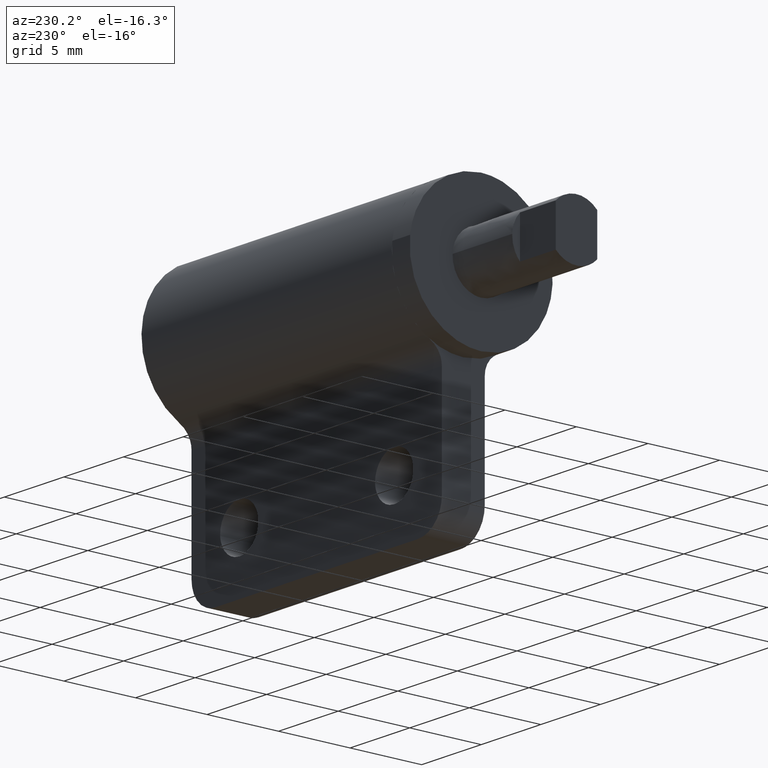
[diagram: clean part render]
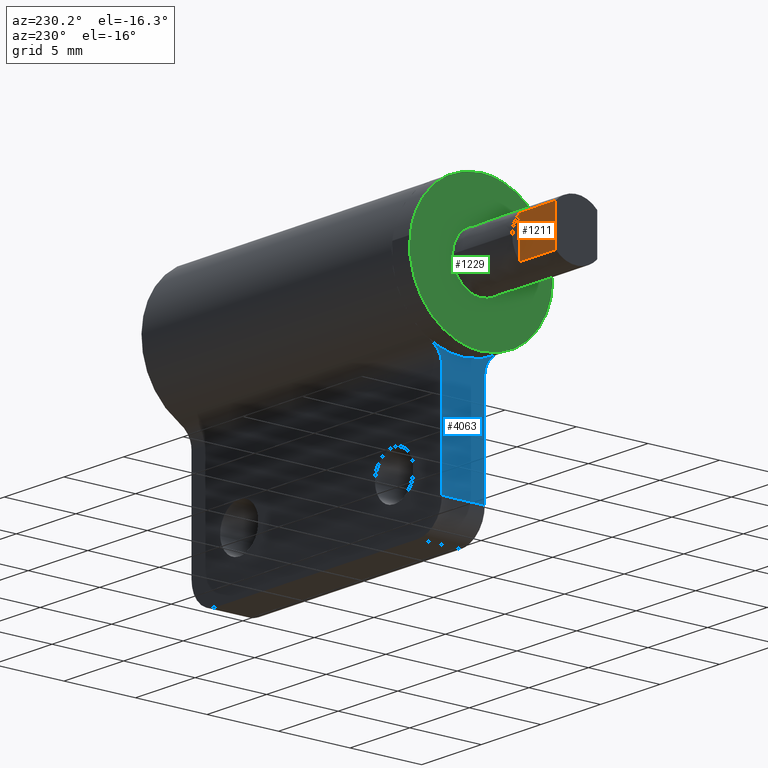
[diagram: same view with three faces highlighted in distinct colors, each labeled with its STEP entity id]
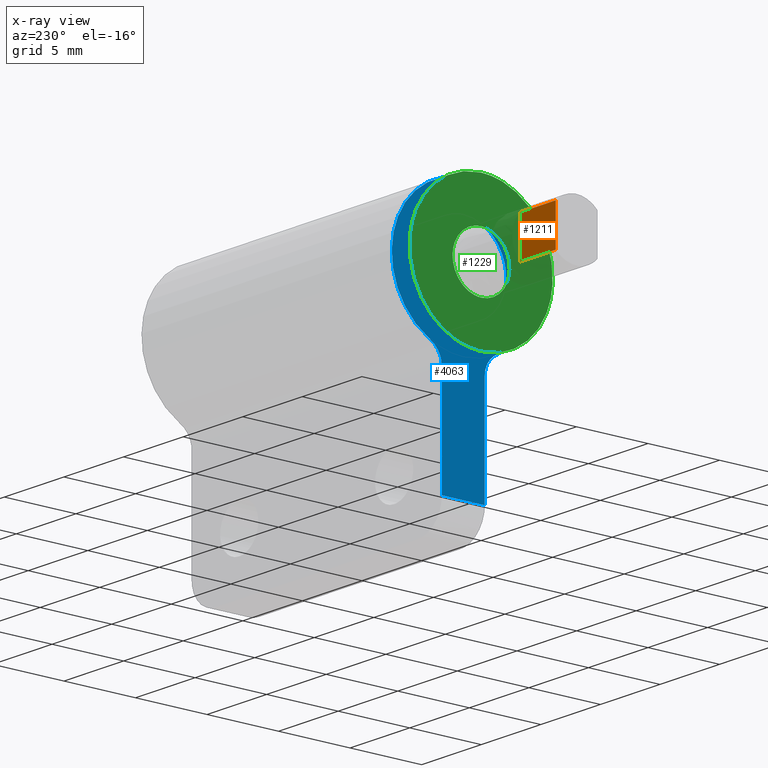
[diagram: x-ray of the same camera — body ghosted, the three highlighted faces saturated]
A machine part, auxiliary view with three faces highlighted in distinct colors.
The next image is the same camera in x-ray (body ghosted, the three faces saturated) — at least one of them is partly hidden behind the body in this view.
Their STEP definitions:

[orange] entity #1211 — the highlighted face is a freeform B-spline surface patch.
#949=CARTESIAN_POINT('',(0.0,1.450000000000000,1.377497731395444));
#950=VERTEX_POINT('',#949);
#964=CARTESIAN_POINT('',(-3.0,1.450000000000000,1.377498000000000));
#965=VERTEX_POINT('',#964);
#966=CARTESIAN_POINT('',(-3.0,1.450000000000000,1.377498000000000));
#967=CARTESIAN_POINT('',(0.0,1.450000000000000,1.377497731395444));
#968=QUASI_UNIFORM_CURVE('',1,(#966,#967),.UNSPECIFIED.,.F.,.U.);
#969=EDGE_CURVE('',#965,#950,#968,.T.);
#1074=CARTESIAN_POINT('',(-3.0,1.450000000000000,-1.377498000000000));
#1075=VERTEX_POINT('',#1074);
#1091=CARTESIAN_POINT('',(0.0,1.450000000000000,-1.377498000000000));
#1092=VERTEX_POINT('',#1091);
#1093=CARTESIAN_POINT('',(-3.0,1.450000000000000,-1.377498000000000));
#1094=CARTESIAN_POINT('',(0.0,1.450000000000000,-1.377498000000000));
#1095=QUASI_UNIFORM_CURVE('',1,(#1093,#1094),.UNSPECIFIED.,.F.,.U.);
#1096=EDGE_CURVE('',#1075,#1092,#1095,.T.);
#1166=CARTESIAN_POINT('',(-3.0,1.450000000000000,1.377498000000000));
#1167=CARTESIAN_POINT('',(-3.0,1.450000000000000,-1.377498000000000));
#1168=QUASI_UNIFORM_CURVE('',1,(#1166,#1167),.UNSPECIFIED.,.F.,.U.);
#1169=EDGE_CURVE('',#965,#1075,#1168,.T.);
#1196=CARTESIAN_POINT('',(-3.149849994185418,1.450000000000000,1.515110096584146));
#1197=CARTESIAN_POINT('',(-3.149849994185418,1.450000000000000,-1.515110121215729));
#1198=CARTESIAN_POINT('',(0.149850074651688,1.450000000000000,1.515110096584146));
#1199=CARTESIAN_POINT('',(0.149850074651688,1.450000000000000,-1.515110121215729));
#1200=B_SPLINE_SURFACE_WITH_KNOTS('',1,1,((#1196,#1198),(#1197,#1199)),.UNSPECIFIED.,.F.,.F.,.U.,(2,2),(2,2),(0.0,3.030220217799875),(0.0,3.299700068837106),.UNSPECIFIED.);
#1201=CARTESIAN_POINT('',(0.0,1.450000000000000,1.377497731395444));
#1202=CARTESIAN_POINT('',(0.0,1.450000000000000,-1.377498000000000));
#1203=QUASI_UNIFORM_CURVE('',1,(#1201,#1202),.UNSPECIFIED.,.F.,.U.);
#1204=EDGE_CURVE('',#950,#1092,#1203,.T.);
#1205=ORIENTED_EDGE('',*,*,#1204,.T.);
#1206=ORIENTED_EDGE('',*,*,#1096,.F.);
#1207=ORIENTED_EDGE('',*,*,#1169,.F.);
#1208=ORIENTED_EDGE('',*,*,#969,.T.);
#1209=EDGE_LOOP('',(#1205,#1206,#1207,#1208));
#1210=FACE_OUTER_BOUND('',#1209,.T.);
#1211=ADVANCED_FACE('',(#1210),#1200,.F.);

[blue] entity #4063 — the highlighted face is a freeform B-spline surface patch.
#3284=CARTESIAN_POINT('',(6.500000000000000,2.994404395264531,-0.183145618622066));
#3285=VERTEX_POINT('',#3284);
#3291=CARTESIAN_POINT('',(6.500000000000000,0.0,-3.0));
#3292=VERTEX_POINT('',#3291);
#3293=CARTESIAN_POINT('',(6.500000000000000,0.0,-3.0));
#3294=CARTESIAN_POINT('',(6.500000000000001,2.822118200684028,-3.0));
#3295=CARTESIAN_POINT('',(6.500000000000000,2.994404395264531,-0.183145618622066));
#3303=(BOUNDED_CURVE()B_SPLINE_CURVE(2,(#3293,#3294,#3295),.UNSPECIFIED.,.F.,.U.)B_SPLINE_CURVE_WITH_KNOTS((3,3),(0.500000000000000,0.739332962239951),.UNSPECIFIED.)CURVE()GEOMETRIC_REPRESENTATION_ITEM()RATIONAL_B_SPLINE_CURVE((1.0,0.719603993285529,0.976072041668878))REPRESENTATION_ITEM(''));
#3304=EDGE_CURVE('',#3292,#3285,#3303,.T.);
#3306=CARTESIAN_POINT('',(6.500000000000000,-2.979028579016237,0.354102704599239));
#3307=VERTEX_POINT('',#3306);
#3308=CARTESIAN_POINT('',(6.500000000000000,-2.979028579016238,0.354102704599239));
#3309=CARTESIAN_POINT('',(6.500000000000001,-3.0,0.177672359591343));
#3310=CARTESIAN_POINT('',(6.500000000000000,-3.0,0.0));
#3311=CARTESIAN_POINT('',(6.500000000000001,-3.0,-3.0));
#3312=CARTESIAN_POINT('',(6.500000000000000,0.0,-3.0));
#3320=(BOUNDED_CURVE()B_SPLINE_CURVE(2,(#3308,#3309,#3310,#3311,#3312),.UNSPECIFIED.,.F.,.U.)B_SPLINE_CURVE_WITH_KNOTS((3,2,3),(0.229562473444281,0.250000000000000,0.500000000000000),.UNSPECIFIED.)CURVE()GEOMETRIC_REPRESENTATION_ITEM()RATIONAL_B_SPLINE_CURVE((0.956026754048011,0.976055948250040,1.0,0.707106781186548,1.0))REPRESENTATION_ITEM(''));
#3321=EDGE_CURVE('',#3307,#3292,#3320,.T.);
#3365=CARTESIAN_POINT('',(6.500000000000000,0.0,3.0));
#3366=VERTEX_POINT('',#3365);
#3367=CARTESIAN_POINT('',(6.500000000000000,0.0,3.0));
#3368=CARTESIAN_POINT('',(6.500000000000000,-2.664523576721059,3.0));
#3369=CARTESIAN_POINT('',(6.500000000000000,-2.979028579016238,0.354102704599239));
#3377=(BOUNDED_CURVE()B_SPLINE_CURVE(2,(#3367,#3368,#3369),.UNSPECIFIED.,.F.,.U.)B_SPLINE_CURVE_WITH_KNOTS((3,3),(0.0,0.229562473444281),.UNSPECIFIED.)CURVE()GEOMETRIC_REPRESENTATION_ITEM()RATIONAL_B_SPLINE_CURVE((1.0,0.731050832936508,0.956026754048011))REPRESENTATION_ITEM(''));
#3378=EDGE_CURVE('',#3366,#3307,#3377,.T.);
#3380=CARTESIAN_POINT('',(6.500000000000000,2.994404395264531,-0.183145618622066));
#3381=CARTESIAN_POINT('',(6.499999999999999,3.0,-0.091658289913311));
#3382=CARTESIAN_POINT('',(6.500000000000000,3.0,0.0));
#3383=CARTESIAN_POINT('',(6.500000000000001,3.0,3.0));
#3384=CARTESIAN_POINT('',(6.500000000000000,0.0,3.0));
#3392=(BOUNDED_CURVE()B_SPLINE_CURVE(2,(#3380,#3381,#3382,#3383,#3384),.UNSPECIFIED.,.F.,.U.)B_SPLINE_CURVE_WITH_KNOTS((3,2,3),(0.739332962239952,0.750000000000000,1.0),.UNSPECIFIED.)CURVE()GEOMETRIC_REPRESENTATION_ITEM()RATIONAL_B_SPLINE_CURVE((0.976072041668881,0.987502787901020,1.0,0.707106781186548,1.0))REPRESENTATION_ITEM(''));
#3393=EDGE_CURVE('',#3285,#3366,#3392,.T.);
#3800=CARTESIAN_POINT('',(6.500000000000000,-1.500000000000000,-13.0));
#3801=VERTEX_POINT('',#3800);
#3817=CARTESIAN_POINT('',(6.500000000000000,1.500000000000000,-13.0));
#3818=VERTEX_POINT('',#3817);
#3819=CARTESIAN_POINT('',(6.500000000000000,1.500000000000000,-13.0));
#3820=CARTESIAN_POINT('',(6.500000000000000,-1.500000000000000,-13.0));
#3821=QUASI_UNIFORM_CURVE('',1,(#3819,#3820),.UNSPECIFIED.,.F.,.U.);
#3822=EDGE_CURVE('',#3818,#3801,#3821,.T.);
#3986=CARTESIAN_POINT('',(6.500000000000000,-5.497595060111656,5.899099965112468));
#3987=CARTESIAN_POINT('',(6.500000000000000,5.497594819851717,5.899099965112468));
#3988=CARTESIAN_POINT('',(6.500000000000000,-5.497595060111656,-13.899100447910129));
#3989=CARTESIAN_POINT('',(6.500000000000000,5.497594819851717,-13.899100447910129));
#3990=B_SPLINE_SURFACE_WITH_KNOTS('',1,1,((#3986,#3988),(#3987,#3989)),.UNSPECIFIED.,.F.,.F.,.U.,(2,2),(2,2),(0.0,10.995189879963370),(0.0,19.798200413022599),.UNSPECIFIED.);
#3991=CARTESIAN_POINT('',(6.500000000000000,1.500000000000000,-5.766281000000000));
#3992=VERTEX_POINT('',#3991);
#3993=CARTESIAN_POINT('',(6.500000000000000,1.500000000000000,-13.0));
#3994=CARTESIAN_POINT('',(6.500000000000000,1.500000000000000,-5.766281000000000));
#3995=QUASI_UNIFORM_CURVE('',1,(#3993,#3994),.UNSPECIFIED.,.F.,.U.);
#3996=EDGE_CURVE('',#3818,#3992,#3995,.T.);
#3997=ORIENTED_EDGE('',*,*,#3996,.F.);
#3998=ORIENTED_EDGE('',*,*,#3822,.T.);
#3999=CARTESIAN_POINT('',(6.500000000000000,-1.500000000000000,-5.766281000000000));
#4000=VERTEX_POINT('',#3999);
#4001=CARTESIAN_POINT('',(6.500000000000000,-1.500000000000000,-5.766281000000000));
#4002=CARTESIAN_POINT('',(6.500000000000000,-1.500000000000000,-13.0));
#4003=QUASI_UNIFORM_CURVE('',1,(#4001,#4002),.UNSPECIFIED.,.F.,.U.);
#4004=EDGE_CURVE('',#4000,#3801,#4003,.T.);
#4005=ORIENTED_EDGE('',*,*,#4004,.F.);
#4006=CARTESIAN_POINT('',(6.500000000000000,-2.307692313507350,-4.435600697589530));
#4007=VERTEX_POINT('',#4006);
#4008=CARTESIAN_POINT('',(6.500000000000000,-1.500000000000000,-5.766281000000000));
#4009=CARTESIAN_POINT('',(6.500000000000001,-1.500000000000000,-4.855815527514696));
#4010=CARTESIAN_POINT('',(6.500000000000000,-2.307692313507353,-4.435600697589538));
#4018=(BOUNDED_CURVE()B_SPLINE_CURVE(2,(#4008,#4009,#4010),.UNSPECIFIED.,.F.,.U.)CURVE()GEOMETRIC_REPRESENTATION_ITEM()QUASI_UNIFORM_CURVE()RATIONAL_B_SPLINE_CURVE((1.0,0.854850413131375,1.0))REPRESENTATION_ITEM(''));
#4019=EDGE_CURVE('',#4000,#4007,#4018,.T.);
#4020=ORIENTED_EDGE('',*,*,#4019,.T.);
#4021=CARTESIAN_POINT('',(6.500000000000000,2.307692313507355,-4.435600697589530));
#4022=VERTEX_POINT('',#4021);
#4023=CARTESIAN_POINT('',(6.500000000000000,2.307692313507355,-4.435600697589530));
#4024=CARTESIAN_POINT('',(6.500000000000000,5.789198679060178,-2.624291540586706));
#4025=CARTESIAN_POINT('',(6.500000000000000,4.856851071318538,1.187854229706647));
#4026=CARTESIAN_POINT('',(6.500000000000000,3.924503463576897,5.0));
#4027=CARTESIAN_POINT('',(6.500000000000000,0.0,5.0));
#4028=CARTESIAN_POINT('',(6.500000000000000,-3.924503463576895,5.0));
#4029=CARTESIAN_POINT('',(6.500000000000000,-4.856851071318537,1.187854229706649));
#4030=CARTESIAN_POINT('',(6.500000000000000,-5.789198679060178,-2.624291540586702));
#4031=CARTESIAN_POINT('',(6.500000000000000,-2.307692313507350,-4.435600697589530));
#4039=(BOUNDED_CURVE()B_SPLINE_CURVE(2,(#4023,#4024,#4025,#4026,#4027,#4028,#4029,#4030,#4031),.UNSPECIFIED.,.F.,.U.)B_SPLINE_CURVE_WITH_KNOTS((3,2,2,2,3),(0.0,0.250000000000000,0.500000000000000,0.750000000000000,1.0),.UNSPECIFIED.)CURVE()GEOMETRIC_REPRESENTATION_ITEM()RATIONAL_B_SPLINE_CURVE((1.0,0.786629152123582,1.0,0.786629152123582,1.0,0.786629152123582,1.0,0.786629152123582,1.0))REPRESENTATION_ITEM(''));
#4040=EDGE_CURVE('',#4022,#4007,#4039,.T.);
#4041=ORIENTED_EDGE('',*,*,#4040,.F.);
#4042=CARTESIAN_POINT('',(6.500000000000000,2.307692313507357,-4.435600697589536));
#4043=CARTESIAN_POINT('',(6.499999999999999,1.500000000000000,-4.855815527514692));
#4044=CARTESIAN_POINT('',(6.500000000000000,1.500000000000000,-5.766281000000000));
#4052=(BOUNDED_CURVE()B_SPLINE_CURVE(2,(#4042,#4043,#4044),.UNSPECIFIED.,.F.,.U.)CURVE()GEOMETRIC_REPRESENTATION_ITEM()QUASI_UNIFORM_CURVE()RATIONAL_B_SPLINE_CURVE((1.0,0.854850413131374,1.0))REPRESENTATION_ITEM(''));
#4053=EDGE_CURVE('',#4022,#3992,#4052,.T.);
#4054=ORIENTED_EDGE('',*,*,#4053,.T.);
#4055=EDGE_LOOP('',(#3997,#3998,#4005,#4020,#4041,#4054));
#4056=FACE_OUTER_BOUND('',#4055,.T.);
#4057=ORIENTED_EDGE('',*,*,#3304,.T.);
#4058=ORIENTED_EDGE('',*,*,#3393,.T.);
#4059=ORIENTED_EDGE('',*,*,#3378,.T.);
#4060=ORIENTED_EDGE('',*,*,#3321,.T.);
#4061=EDGE_LOOP('',(#4057,#4058,#4059,#4060));
#4062=FACE_BOUND('',#4061,.T.);
#4063=ADVANCED_FACE('',(#4056,#4062),#3990,.T.);

[green] entity #1229 — the highlighted face is a freeform B-spline surface patch.
#726=CARTESIAN_POINT('',(4.999999999999956,4.965047923238447,0.590168721586030));
#727=VERTEX_POINT('',#726);
#728=CARTESIAN_POINT('',(5.0,0.0,-4.999999999999901));
#729=VERTEX_POINT('',#728);
#730=CARTESIAN_POINT('',(4.999999999999956,4.965047923238446,0.590168721586030));
#731=CARTESIAN_POINT('',(4.999999999999999,4.999999999999901,0.296119359451242));
#732=CARTESIAN_POINT('',(5.0,4.999999999999901,0.0));
#733=CARTESIAN_POINT('',(4.999999999999999,4.999999999999901,-4.999999999999901));
#734=CARTESIAN_POINT('',(5.0,0.0,-4.999999999999901));
#742=(BOUNDED_CURVE()B_SPLINE_CURVE(2,(#730,#731,#732,#733,#734),.UNSPECIFIED.,.F.,.U.)B_SPLINE_CURVE_WITH_KNOTS((3,2,3),(0.229562556967996,0.250000000000000,0.500000000000000),.UNSPECIFIED.)CURVE()GEOMETRIC_REPRESENTATION_ITEM()RATIONAL_B_SPLINE_CURVE((0.956026917757975,0.976056046104159,1.0,0.707106781186547,1.0))REPRESENTATION_ITEM(''));
#743=EDGE_CURVE('',#727,#729,#742,.T.);
#784=CARTESIAN_POINT('',(4.999999999999783,-4.990674453796516,-0.305235148966578));
#785=VERTEX_POINT('',#784);
#791=CARTESIAN_POINT('',(5.0,0.0,-4.999999999999901));
#792=CARTESIAN_POINT('',(5.0,-4.703537462212243,-4.999999999999900));
#793=CARTESIAN_POINT('',(4.999999999999783,-4.990674453796516,-0.305235148966578));
#801=(BOUNDED_CURVE()B_SPLINE_CURVE(2,(#791,#792,#793),.UNSPECIFIED.,.F.,.U.)B_SPLINE_CURVE_WITH_KNOTS((3,3),(0.500000000000000,0.739333223229870),.UNSPECIFIED.)CURVE()GEOMETRIC_REPRESENTATION_ITEM()RATIONAL_B_SPLINE_CURVE((1.0,0.719603687516819,0.976072601020595))REPRESENTATION_ITEM(''));
#802=EDGE_CURVE('',#729,#785,#801,.T.);
#825=CARTESIAN_POINT('',(5.0,0.0,4.999999999999901));
#826=VERTEX_POINT('',#825);
#827=CARTESIAN_POINT('',(5.0,0.0,4.999999999999901));
#828=CARTESIAN_POINT('',(4.999999999999999,4.440874838058830,4.999999999999900));
#829=CARTESIAN_POINT('',(4.999999999999956,4.965047923238446,0.590168721586030));
#837=(BOUNDED_CURVE()B_SPLINE_CURVE(2,(#827,#828,#829),.UNSPECIFIED.,.F.,.U.)B_SPLINE_CURVE_WITH_KNOTS((3,3),(0.0,0.229562556967996),.UNSPECIFIED.)CURVE()GEOMETRIC_REPRESENTATION_ITEM()RATIONAL_B_SPLINE_CURVE((1.0,0.731050735082389,0.956026917757975))REPRESENTATION_ITEM(''));
#838=EDGE_CURVE('',#826,#727,#837,.T.);
#840=CARTESIAN_POINT('',(4.999999999999783,-4.990674453796516,-0.305235148966578));
#841=CARTESIAN_POINT('',(5.0,-4.999999999999901,-0.152760031556608));
#842=CARTESIAN_POINT('',(5.0,-4.999999999999901,0.0));
#843=CARTESIAN_POINT('',(4.999999999999999,-4.999999999999901,4.999999999999901));
#844=CARTESIAN_POINT('',(5.0,0.0,4.999999999999901));
#852=(BOUNDED_CURVE()B_SPLINE_CURVE(2,(#840,#841,#842,#843,#844),.UNSPECIFIED.,.F.,.U.)B_SPLINE_CURVE_WITH_KNOTS((3,2,3),(0.739333223229870,0.750000000000000,1.0),.UNSPECIFIED.)CURVE()GEOMETRIC_REPRESENTATION_ITEM()RATIONAL_B_SPLINE_CURVE((0.976072601020595,0.987503093669728,1.0,0.707106781186547,1.0))REPRESENTATION_ITEM(''));
#853=EDGE_CURVE('',#785,#826,#852,.T.);
#908=CARTESIAN_POINT('',(5.0,-1.998743408336219,-0.070885736450385));
#909=VERTEX_POINT('',#908);
#910=CARTESIAN_POINT('',(5.0,0.0,1.999999999999900));
#911=VERTEX_POINT('',#910);
#912=CARTESIAN_POINT('',(5.0,-1.998743408336219,-0.070885736450385));
#913=CARTESIAN_POINT('',(5.000000000000001,-1.999999999999899,-0.035454006057682));
#914=CARTESIAN_POINT('',(5.0,-1.999999999999900,0.0));
#915=CARTESIAN_POINT('',(5.000000000000001,-1.999999999999899,1.999999999999899));
#916=CARTESIAN_POINT('',(5.0,0.0,1.999999999999900));
#924=(BOUNDED_CURVE()B_SPLINE_CURVE(2,(#912,#913,#914,#915,#916),.UNSPECIFIED.,.F.,.U.)B_SPLINE_CURVE_WITH_KNOTS((3,2,3),(0.743778242875017,0.750000000000000,1.0),.UNSPECIFIED.)CURVE()GEOMETRIC_REPRESENTATION_ITEM()RATIONAL_B_SPLINE_CURVE((0.985784331372927,0.992710758115952,1.0,0.707106781186548,1.0))REPRESENTATION_ITEM(''));
#925=EDGE_CURVE('',#909,#911,#924,.T.);
#927=CARTESIAN_POINT('',(5.0,1.998743408336219,0.070885736450385));
#928=VERTEX_POINT('',#927);
#929=CARTESIAN_POINT('',(5.0,0.0,1.999999999999900));
#930=CARTESIAN_POINT('',(5.0,1.930327079949301,1.999999999999901));
#931=CARTESIAN_POINT('',(5.0,1.998743408336218,0.070885736450385));
#939=(BOUNDED_CURVE()B_SPLINE_CURVE(2,(#929,#930,#931),.UNSPECIFIED.,.F.,.U.)B_SPLINE_CURVE_WITH_KNOTS((3,3),(0.0,0.243778242875017),.UNSPECIFIED.)CURVE()GEOMETRIC_REPRESENTATION_ITEM()RATIONAL_B_SPLINE_CURVE((1.0,0.714396023070595,0.985784331372927))REPRESENTATION_ITEM(''));
#940=EDGE_CURVE('',#911,#928,#939,.T.);
#1036=CARTESIAN_POINT('',(5.0,0.0,-1.999999999999900));
#1037=VERTEX_POINT('',#1036);
#1038=CARTESIAN_POINT('',(5.0,0.0,-1.999999999999900));
#1039=CARTESIAN_POINT('',(5.0,-1.930327079949302,-1.999999999999901));
#1040=CARTESIAN_POINT('',(5.000000000000001,-1.998743408336219,-0.070885736450385));
#1048=(BOUNDED_CURVE()B_SPLINE_CURVE(2,(#1038,#1039,#1040),.UNSPECIFIED.,.F.,.U.)B_SPLINE_CURVE_WITH_KNOTS((3,3),(0.500000000000000,0.743778242875017),.UNSPECIFIED.)CURVE()GEOMETRIC_REPRESENTATION_ITEM()RATIONAL_B_SPLINE_CURVE((1.0,0.714396023070595,0.985784331372928))REPRESENTATION_ITEM(''));
#1049=EDGE_CURVE('',#1037,#909,#1048,.T.);
#1112=CARTESIAN_POINT('',(5.0,1.998743408336219,0.070885736450385));
#1113=CARTESIAN_POINT('',(4.999999999999999,1.999999999999899,0.035454006057683));
#1114=CARTESIAN_POINT('',(5.0,1.999999999999900,0.0));
#1115=CARTESIAN_POINT('',(5.000000000000001,1.999999999999899,-1.999999999999899));
#1116=CARTESIAN_POINT('',(5.0,0.0,-1.999999999999900));
#1124=(BOUNDED_CURVE()B_SPLINE_CURVE(2,(#1112,#1113,#1114,#1115,#1116),.UNSPECIFIED.,.F.,.U.)B_SPLINE_CURVE_WITH_KNOTS((3,2,3),(0.243778242875017,0.250000000000000,0.500000000000000),.UNSPECIFIED.)CURVE()GEOMETRIC_REPRESENTATION_ITEM()RATIONAL_B_SPLINE_CURVE((0.985784331372927,0.992710758115952,1.0,0.707106781186548,1.0))REPRESENTATION_ITEM(''));
#1125=EDGE_CURVE('',#928,#1037,#1124,.T.);
#1212=CARTESIAN_POINT('',(5.0,-5.499378285062186,5.499499980617951));
#1213=CARTESIAN_POINT('',(5.0,-5.499378285062186,-5.499500248838851));
#1214=CARTESIAN_POINT('',(5.0,5.499409041058890,5.499499980617951));
#1215=CARTESIAN_POINT('',(5.0,5.499409041058889,-5.499500248838851));
#1216=B_SPLINE_SURFACE_WITH_KNOTS('',1,1,((#1212,#1214),(#1213,#1215)),.UNSPECIFIED.,.F.,.F.,.U.,(2,2),(2,2),(0.0,10.999000229456801),(0.0,10.998787326121080),.UNSPECIFIED.);
#1217=ORIENTED_EDGE('',*,*,#838,.T.);
#1218=ORIENTED_EDGE('',*,*,#743,.T.);
#1219=ORIENTED_EDGE('',*,*,#802,.T.);
#1220=ORIENTED_EDGE('',*,*,#853,.T.);
#1221=EDGE_LOOP('',(#1217,#1218,#1219,#1220));
#1222=FACE_OUTER_BOUND('',#1221,.T.);
#1223=ORIENTED_EDGE('',*,*,#940,.F.);
#1224=ORIENTED_EDGE('',*,*,#925,.F.);
#1225=ORIENTED_EDGE('',*,*,#1049,.F.);
#1226=ORIENTED_EDGE('',*,*,#1125,.F.);
#1227=EDGE_LOOP('',(#1223,#1224,#1225,#1226));
#1228=FACE_BOUND('',#1227,.T.);
#1229=ADVANCED_FACE('',(#1222,#1228),#1216,.F.);